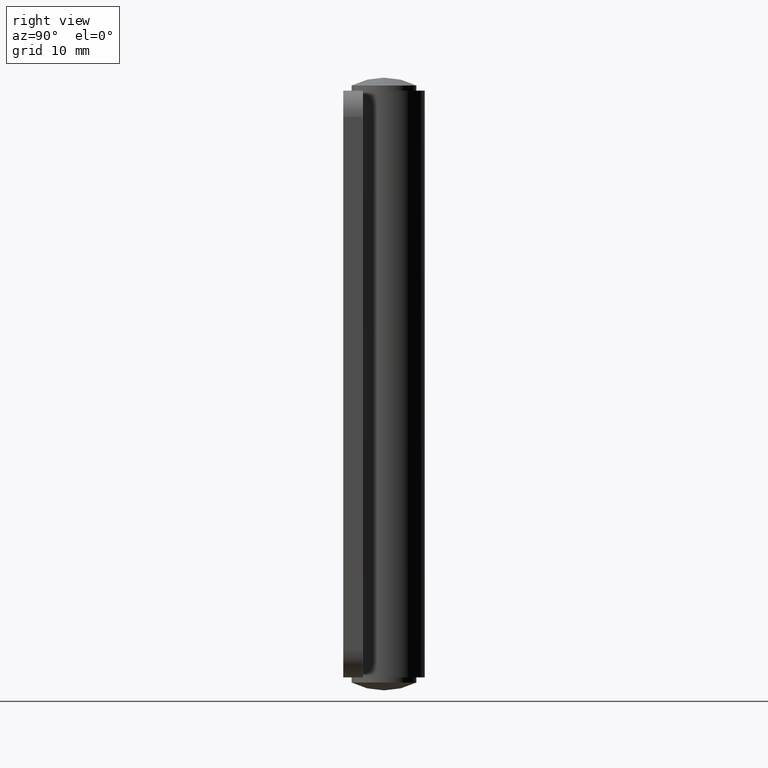
[diagram: clean part render]
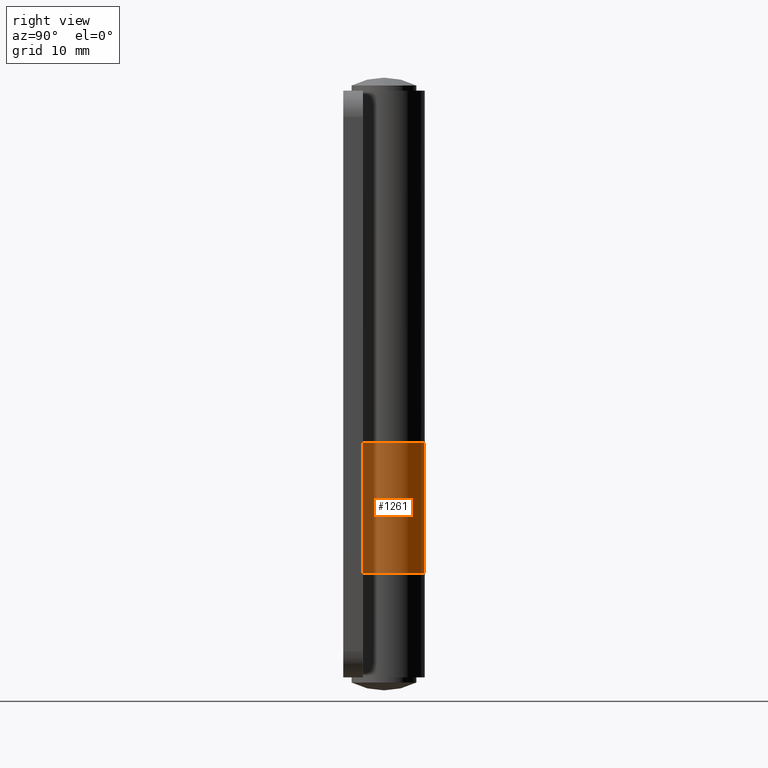
[diagram: same view with one face highlighted and labeled with its STEP entity id]
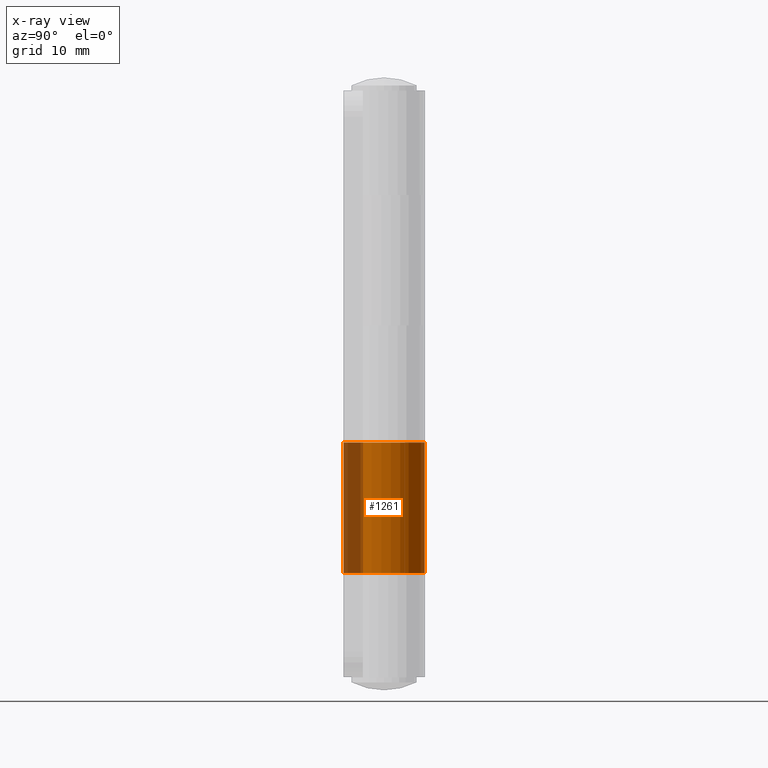
[diagram: x-ray of the same camera — body ghosted, the highlighted face saturated]
A machine part, right view. The second image highlights one B-rep face of the part: STEP entity #1261.
The next image is the same camera in x-ray: the body ghosted, the highlighted face saturated — about 24% of this face is hidden behind the body in this view.
In plain terms, the highlighted cylindrical surface (partial cylindrical patch) has radius 6.25 mm, axis along (0, 0, -1).
Its self-contained STEP definition (entity closure, byte-faithful):
#147=FACE_OUTER_BOUND('',#232,.T.);
#232=EDGE_LOOP('',(#1117,#1118,#1119,#1120));
#322=LINE('',#2015,#428);
#360=LINE('',#2132,#466);
#428=VECTOR('',#1629,20.);
#466=VECTOR('',#1743,20.);
#523=CIRCLE('',#1382,6.25);
#526=CIRCLE('',#1388,6.25);
#601=VERTEX_POINT('',#2012);
#602=VERTEX_POINT('',#2014);
#635=VERTEX_POINT('',#2102);
#639=VERTEX_POINT('',#2117);
#747=EDGE_CURVE('',#602,#601,#322,.T.);
#792=EDGE_CURVE('',#635,#602,#523,.T.);
#801=EDGE_CURVE('',#601,#639,#526,.T.);
#809=EDGE_CURVE('',#635,#639,#360,.T.);
#1117=ORIENTED_EDGE('',*,*,#792,.T.);
#1118=ORIENTED_EDGE('',*,*,#747,.T.);
#1119=ORIENTED_EDGE('',*,*,#801,.T.);
#1120=ORIENTED_EDGE('',*,*,#809,.F.);
#1200=CYLINDRICAL_SURFACE('',#1396,6.25);
#1261=ADVANCED_FACE('',(#147),#1200,.T.);
#1382=AXIS2_PLACEMENT_3D('',#2103,#1711,#1712);
#1388=AXIS2_PLACEMENT_3D('',#2119,#1729,#1730);
#1396=AXIS2_PLACEMENT_3D('',#2139,#1750,#1751);
#1629=DIRECTION('',(0.,0.,1.));
#1711=DIRECTION('center_axis',(0.,0.,1.));
#1712=DIRECTION('ref_axis',(1.22464679914735E-16,-1.,0.));
#1729=DIRECTION('center_axis',(0.,0.,-1.));
#1730=DIRECTION('ref_axis',(1.22464679914735E-16,-1.,0.));
#1743=DIRECTION('',(0.,0.,1.));
#1750=DIRECTION('center_axis',(0.,0.,1.));
#1751=DIRECTION('ref_axis',(0.489897948556636,0.871779788708135,0.));
#2012=CARTESIAN_POINT('',(-5.33853912601566,-3.25,29.));
#2014=CARTESIAN_POINT('',(-5.33853912601566,-3.25,9.));
#2015=CARTESIAN_POINT('',(-5.33853912601566,-3.25,0.));
#2102=CARTESIAN_POINT('',(7.65404249467096E-16,-6.25,9.));
#2103=CARTESIAN_POINT('Origin',(0.,0.,9.));
#2117=CARTESIAN_POINT('',(7.65404249467096E-16,-6.25,29.));
#2119=CARTESIAN_POINT('Origin',(0.,0.,29.));
#2132=CARTESIAN_POINT('',(7.65404249467096E-16,-6.25,0.));
#2139=CARTESIAN_POINT('Origin',(0.,0.,0.));